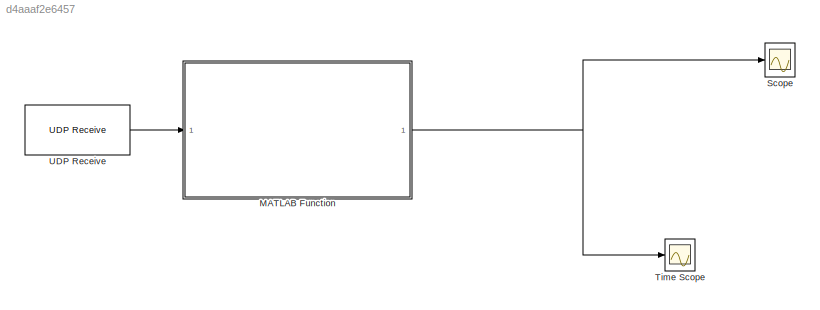
MODEL slx_d4aaaf2e6457
KIND model
CONFIG AbsTol = auto
CONFIG EnableMultiTasking = off
CONFIG FixedStep = auto
CONFIG MaxStep = auto
CONFIG MinStep = auto
CONFIG RelTol = 1e-3
CONFIG SampleTimeConstraint = Unconstrained
CONFIG SolverName = VariableStepAuto
CONFIG StartTime = 0.0
CONFIG StopTime = 10000
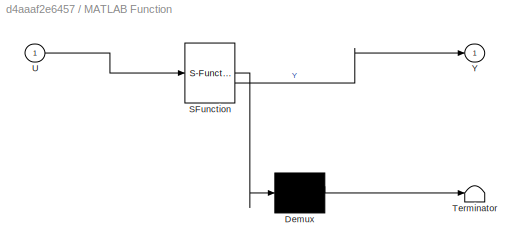
BLOCK [SubSystem] MATLAB Function
  ErrorFcn = Stateflow.Translate.translate
  PermitHierarchicalResolution = ExplicitOnly
  SFBlockType = MATLAB Function
  TreatAsAtomicUnit = on
BLOCK [Demux] MATLAB Function/ Demux 
  Outputs = 1
BLOCK [S-Function] MATLAB Function/ SFunction 
  EnableBusSupport = off
  FunctionName = sf_sfun
  PortCounts = [1 2]
  SFcnIsStateOwnerBlock = off
  SFunctionDeploymentMode = off
  Tag = Stateflow S-Function 2
BLOCK [Terminator] MATLAB Function/ Terminator 
BLOCK [Inport] MATLAB Function/U
BLOCK [Outport] MATLAB Function/Y
BLOCK [Scope] Scope
  ActiveDisplayYMaximum = 1.9807758069769027E+9
  ActiveDisplayYMinimum = -2.2008671227142039E+8
  Floating = off
  GraphicalSettings = {"Style":{"BackgroundColor":[0.12941176470588237,0.12941176470588237,0.12941176470588237],"AxesColor":[0.07058823529411765,0.07058823529411765,0.07058823529411765],"LabelsColor":[0.8509803921568627,0.8509803921568627,0.8509803921568627],"PreserveColors":false,"Visible":[true,true,true,true,true,true,true],"LineStyle":["-","-","-","-","-","-","-"],"LineWidth":[1.5,1.5,1.5,1.5,1.5,1.5,1.5],"BarWidth...<+2558ch>
  MultipleDisplayCache = [{"MaxYLimMag":10,"MaxYLimReal":1.9807758069769027E+9,"MinYLimMag":0,"MinYLimReal":-2.2008671227142039E+8,"PlotAsMagnitudePhase":false,"ShowGrid":true,"ShowLegend":true,"Title":"%<SignalLabel>","YLabel":""}]
  NumInputPorts = 1
  ScopeFrameLocation = window
  ShowLegend = on
  WasSavedAsWebScope = on
  WindowPosition = [0.000000,35.000000,1707.000000,996.000000,]
BLOCK [Scope] Time Scope
  DataLoggingVariableName = ScopeData1
  DefaultConfigurationName = spbscopes.TimeScopeBlockCfg
  Floating = off
  FrameBasedProcessingString = Columns as channels (frame based)
  GraphicalSettings = {"GraphicalSettings":{"LegacySettings":true,"Style":{"AxesScalingProperties":{"AlignXAxis":"Center","AlignYAxis":"Center","AxesScaling":"Manual","AxesScalingNumUpdates":10,"ScaleAxesLimitsAtStop":true,"ShrinkYLimits":true,"XAxisDataRange":100,"YAxisDataRange":80},"Peaks":{"MinDistance":"1","MinHeight":"-Inf","NumPeaks":"3","Threshold":"0"},"Style":{"AutoscaleXAxis":"false","BackgroundColor":"[0.15...<+895ch>
  LayoutDimensionsString = [1 1]
  MaximizeAxes = Auto
  MultipleDisplayCache = [{"MaxYLimMag":10,"MaxYLimReal":10,"MinYLimMag":0,"MinYLimReal":-10,"PlotAsMagnitudePhase":false,"ShowGrid":true,"ShowLegend":false,"Title":"","YLabel":"Amplitude"}]
  NumInputPorts = 1
  OpenAtSimulationStart = on
  ScopeFrameLocation = window
  ShowTimeAxisLabel = on
  TimeAxisLabels = All
  TimeUnits = Metric (based on Time Span)
  UserDataPersistent = on
  WasSavedAsWebScope = on
  WindowPosition = [573.000000,323.000000,560.000000,420.000000,]
  YLabel = Amplitude
BLOCK [Reference] UDP Receive  REF=dspnetwork/UDP Receive
  LibrarySourceBlock = dspsrcs4/UDP Receive
  SourceBlock = dspnetwork/UDP Receive
  SourceType = UDP Receive
NET MATLAB Function:1 -> Scope:1, Time Scope:1
LINE UDP Receive:1 -> MATLAB Function:1
note: NET lines group one-source signal fan-out (src -> all destinations, sorted); 1:1 wires keep LINE
CHART MATLAB Function states=1 transitions=1
  STATE_LABEL 'eML_blk_kernel()'
  STATE_LABEL "SCRIPT:\nfunction Y = parse_brainflow_fixed(U)\n%#codegen\nNumRows  = int32(13);\nKeepRows = int32([2 3 4 5 6 7 8 9 12]);\nFrameCols = 1;                        % choose your frame width\n\nnKeep = numel(KeepRows);\ncoder.varsize('buf',[13,FrameCols],[false false]);\n\n% persistent buffer of doubles\npersistent buf nfill\nif isempty(nfill), buf = zeros(double(NumRows), FrameCols); nfill = 0; end\n\n% Default ou...<+587ch>"
CHART  states=0 transitions=0
